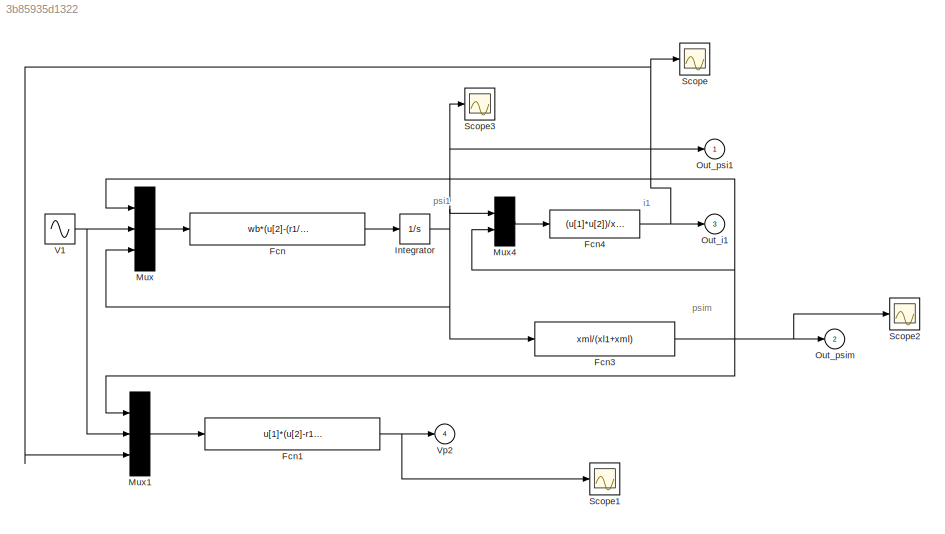
MODEL slx_3b85935d1322
KIND model
CONFIG AbsTol = 1e-6
CONFIG EnableMultiTasking = off
CONFIG FixedStep = auto
CONFIG MaxStep = 1e-3
CONFIG MinStep = auto
CONFIG RelTol = 1e-8
CONFIG SampleTimeConstraint = Unconstrained
CONFIG Solver = ode15s
CONFIG SolverName = ode15s
CONFIG StartTime = 0.0
CONFIG StopTime = 10
BLOCK [Fcn] Fcn
  Expr = wb*(u[2]-(r1/xl1)*(u[3]-u[1]))
BLOCK [Fcn] Fcn1
  Expr = u[1]*(u[2]-r1*u[3])
BLOCK [Fcn] Fcn3
  Expr = xml/(xl1+xml)
BLOCK [Fcn] Fcn4
  Expr = (u[1]*u[2])/xml
BLOCK [Integrator] Integrator
  Ports = [1, 1]
BLOCK [Mux] Mux
  Inputs = 3
  Ports = [3, 1]
BLOCK [Mux] Mux1
  Inputs = 3
  Ports = [3, 1]
BLOCK [Mux] Mux4
  Inputs = 2
  Ports = [2, 1]
BLOCK [Outport] Out_i1
  InitialOutput = 0
  Port = 3
BLOCK [Outport] Out_psi1
  InitialOutput = 0
BLOCK [Outport] Out_psim
  InitialOutput = 0
  Port = 2
BLOCK [Scope] Scope
  Floating = off
  NumInputPorts = 1
  Ports = [1]
  ScopeSpecificationString = Simulink.scopes.TimeScopeBlockCfg('CurrentConfiguration', extmgr.ConfigurationSet(extmgr.Configuration('Core','General UI',true),extmgr.Configuration('Core','Source UI',true),extmgr.Configuration('Sources','WiredSimulink',true),extmgr.Configuration('Visuals','Time Domain',true,'SerializedDisplays',{struct('MinYLimReal','-0.16712','MaxYLimReal','0.14762','YLabelReal','','MinYLimMag','0.00000','MaxY...<+1368ch>
BLOCK [Scope] Scope1
  Floating = off
  NumInputPorts = 1
  Ports = [1]
  ScopeSpecificationString = Simulink.scopes.TimeScopeBlockCfg('CurrentConfiguration', extmgr.ConfigurationSet(extmgr.Configuration('Core','General UI',true),extmgr.Configuration('Core','Source UI',true),extmgr.Configuration('Sources','WiredSimulink',true,'DataLoggingVariableName','ScopeData1'),extmgr.Configuration('Visuals','Time Domain',true,'SerializedDisplays',{struct('MinYLimReal','-44.26867','MaxYLimReal','33.80636','YL...<+1416ch>
BLOCK [Scope] Scope2
  Floating = off
  NumInputPorts = 1
  Ports = [1]
  ScopeSpecificationString = Simulink.scopes.TimeScopeBlockCfg('CurrentConfiguration', extmgr.ConfigurationSet(extmgr.Configuration('Core','General UI',true),extmgr.Configuration('Core','Source UI',true),extmgr.Configuration('Sources','WiredSimulink',true,'DataLoggingVariableName','ScopeData2'),extmgr.Configuration('Visuals','Time Domain',true,'SerializedDisplays',{struct('MinYLimReal','0.99992099946943','MaxYLimReal','0.9999...<+1452ch>
BLOCK [Scope] Scope3
  Floating = off
  NumInputPorts = 1
  Ports = [1]
  ScopeSpecificationString = Simulink.scopes.TimeScopeBlockCfg('CurrentConfiguration', extmgr.ConfigurationSet(extmgr.Configuration('Core','General UI',true),extmgr.Configuration('Core','Source UI',true),extmgr.Configuration('Sources','WiredSimulink',true,'DataLoggingVariableName','ScopeData3'),extmgr.Configuration('Visuals','Time Domain',true,'SerializedDisplays',{struct('MinYLimReal','-599.99091','MaxYLimReal','599.9909','Y...<+1454ch>
BLOCK [Sin] V1
  Amplitude = 120
  Frequency = 120*pi
  Ports = [0, 1]
  SampleTime = 0
BLOCK [Outport] Vp2
  InitialOutput = 0
  Port = 4
ANNOTATION (root): i1
ANNOTATION (root): psi1
ANNOTATION (root): psim
NET Fcn1:1 -> Scope1:1, Vp2:1
NET Fcn3:1 -> Mux1:1, Mux4:2, Mux:1, Out_psim:1, Scope2:1
NET Fcn4:1 -> Mux1:3, Out_i1:1, Scope:1
LINE Fcn:1 -> Integrator:1
NET Integrator:1 -> Fcn3:1, Mux4:1, Mux:3, Out_psi1:1, Scope3:1
LINE Mux1:1 -> Fcn1:1
LINE Mux4:1 -> Fcn4:1
LINE Mux:1 -> Fcn:1
NET V1:1 -> Mux1:2, Mux:2
note: NET lines group one-source signal fan-out (src -> all destinations, sorted); 1:1 wires keep LINE
